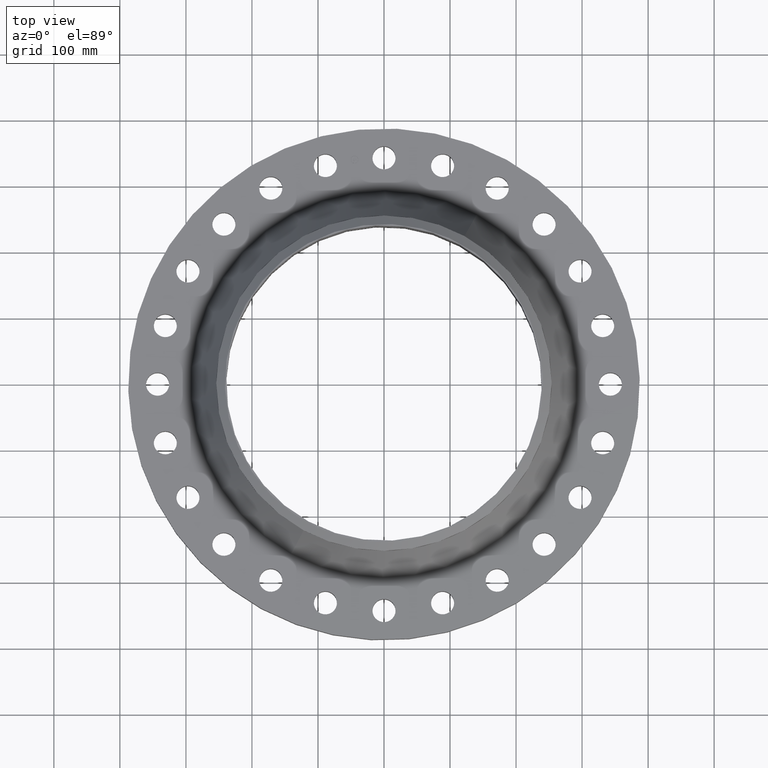
[diagram: clean part render]
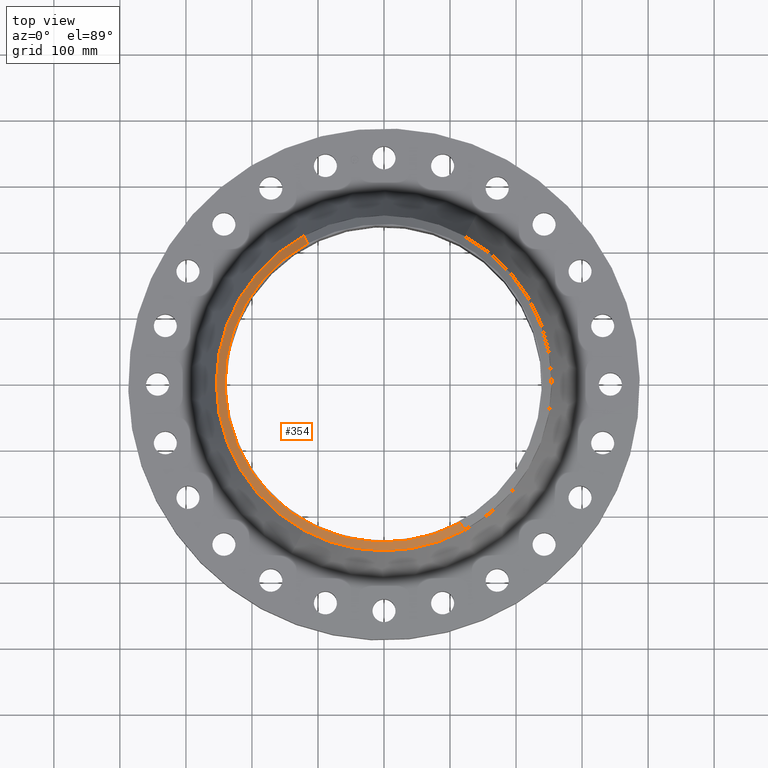
[diagram: same view with one face highlighted and labeled with its STEP entity id]
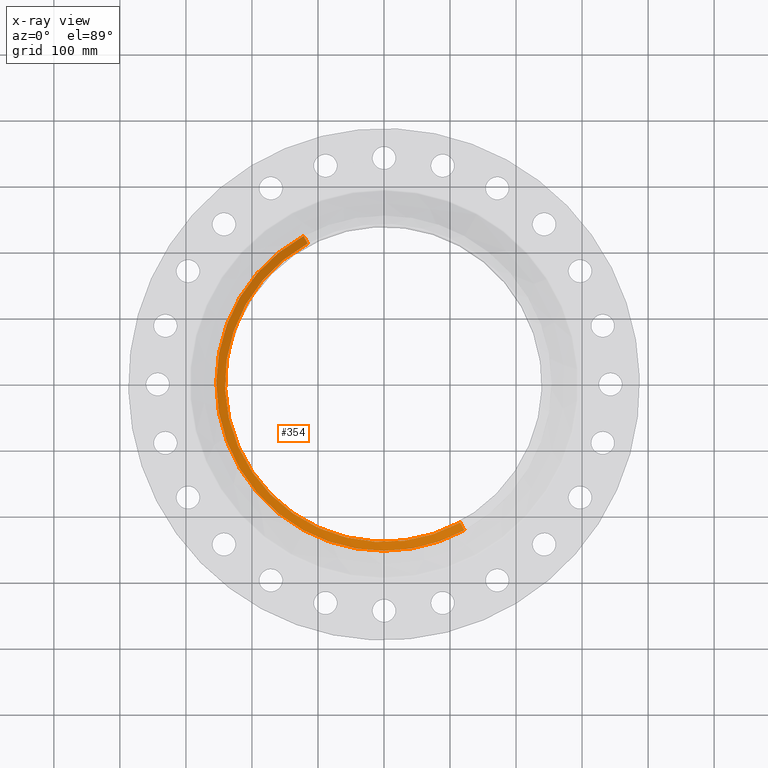
[diagram: x-ray of the same camera — body ghosted, the highlighted face saturated]
A machine part, top view. The second image highlights one B-rep face of the part: STEP entity #354.
The next image is the same camera in x-ray: the body ghosted, the highlighted face saturated — about 0% of this face is hidden behind the body in this view.
In plain terms, the highlighted conical surface has half-angle 52.5 deg.
Its self-contained STEP definition (entity closure, byte-faithful):
#292=AXIS2_PLACEMENT_3D('Circle Axis2P3D',#290,#291,$) ;
#305=AXIS2_PLACEMENT_3D('Circle Axis2P3D',#303,#304,$) ;
#326=AXIS2_PLACEMENT_3D('Cone Axis2P3D',#323,#324,#325) ;
#337=AXIS2_PLACEMENT_3D('Circle Axis2P3D',#335,#336,$) ;
#273=CARTESIAN_POINT('Vertex',(-4.79425538606,-8.77582561894,5.92462721704)) ;
#287=CARTESIAN_POINT('Vertex',(4.79425538606,-8.77582561894,5.92462721704)) ;
#290=CARTESIAN_POINT('Axis2P3D Location',(0.,0.,5.92462721704)) ;
#303=CARTESIAN_POINT('Axis2P3D Location',(0.,0.,5.92462721704)) ;
#307=CARTESIAN_POINT('Vertex',(-4.79425538606,8.77582561894,5.92462721704)) ;
#323=CARTESIAN_POINT('Axis2P3D Location',(0.,0.,6.32000000003)) ;
#328=CARTESIAN_POINT('Line Origine',(4.6707410223,-8.54973409262,6.12231360853)) ;
#332=CARTESIAN_POINT('Vertex',(4.54722665854,-8.3236425663,6.32000000003)) ;
#335=CARTESIAN_POINT('Axis2P3D Location',(0.,0.,6.32000000003)) ;
#339=CARTESIAN_POINT('Vertex',(-4.54722665854,8.3236425663,6.32000000003)) ;
#342=CARTESIAN_POINT('Line Origine',(-4.6707410223,8.54973409262,6.12231360853)) ;
#291=DIRECTION('Axis2P3D Direction',(0.,0.,-0.0393700787402)) ;
#304=DIRECTION('Axis2P3D Direction',(0.,0.,-0.0393700787402)) ;
#324=DIRECTION('Axis2P3D Direction',(-0.,-0.,-0.0393700787402)) ;
#325=DIRECTION('Axis2P3D XDirection',(-0.0188750212049,0.0345504945626,0.)) ;
#329=DIRECTION('Vector Direction',(0.014974561121,-0.02741075027,-0.023966985394)) ;
#336=DIRECTION('Axis2P3D Direction',(0.,0.,-0.0393700787402)) ;
#343=DIRECTION('Vector Direction',(-0.014974561121,0.02741075027,-0.023966985394)) ;
#330=VECTOR('Line Direction',#329,0.0393700787402) ;
#344=VECTOR('Line Direction',#343,0.0393700787402) ;
#348=ORIENTED_EDGE('',*,*,#334,.F.) ;
#349=ORIENTED_EDGE('',*,*,#341,.F.) ;
#350=ORIENTED_EDGE('',*,*,#346,.T.) ;
#351=ORIENTED_EDGE('',*,*,#309,.T.) ;
#352=ORIENTED_EDGE('',*,*,#294,.F.) ;
#354=ADVANCED_FACE('PartBody',(#353),#327,.T.) ;
#293=CIRCLE('generated circle',#292,10.) ;
#306=CIRCLE('generated circle',#305,10.) ;
#338=CIRCLE('generated circle',#337,9.48474015752) ;
#327=CONICAL_SURFACE('Cone',#326,9.48474015752,0.916297857297) ;
#294=EDGE_CURVE('',#288,#274,#293,.T.) ;
#309=EDGE_CURVE('',#308,#274,#306,.F.) ;
#334=EDGE_CURVE('',#333,#288,#331,.T.) ;
#341=EDGE_CURVE('',#340,#333,#338,.F.) ;
#346=EDGE_CURVE('',#340,#308,#345,.T.) ;
#347=EDGE_LOOP('',(#348,#349,#350,#351,#352)) ;
#353=FACE_OUTER_BOUND('',#347,.T.) ;
#331=LINE('Line',#328,#330) ;
#345=LINE('Line',#342,#344) ;
#274=VERTEX_POINT('',#273) ;
#288=VERTEX_POINT('',#287) ;
#308=VERTEX_POINT('',#307) ;
#333=VERTEX_POINT('',#332) ;
#340=VERTEX_POINT('',#339) ;